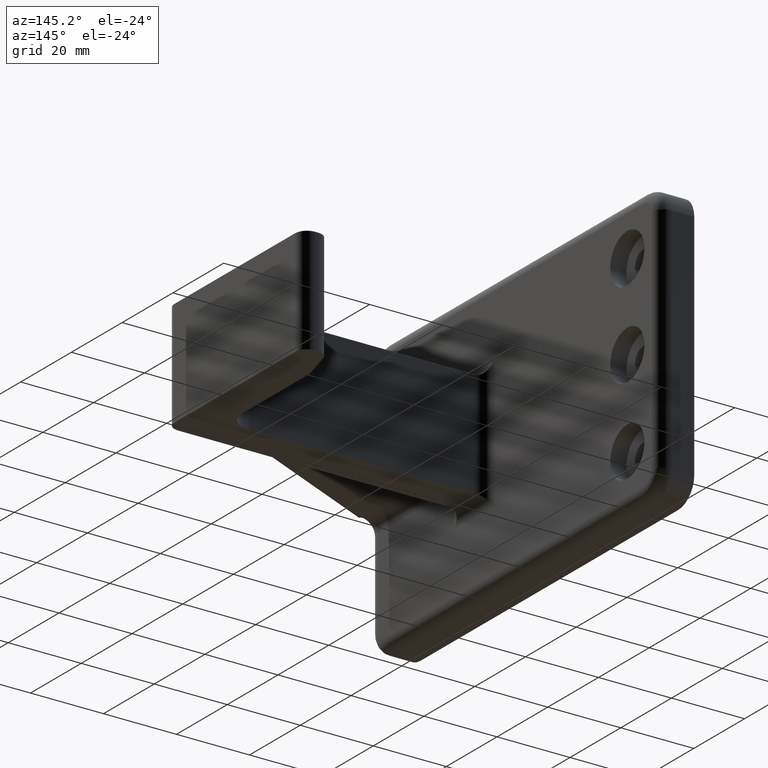
[diagram: clean part render]
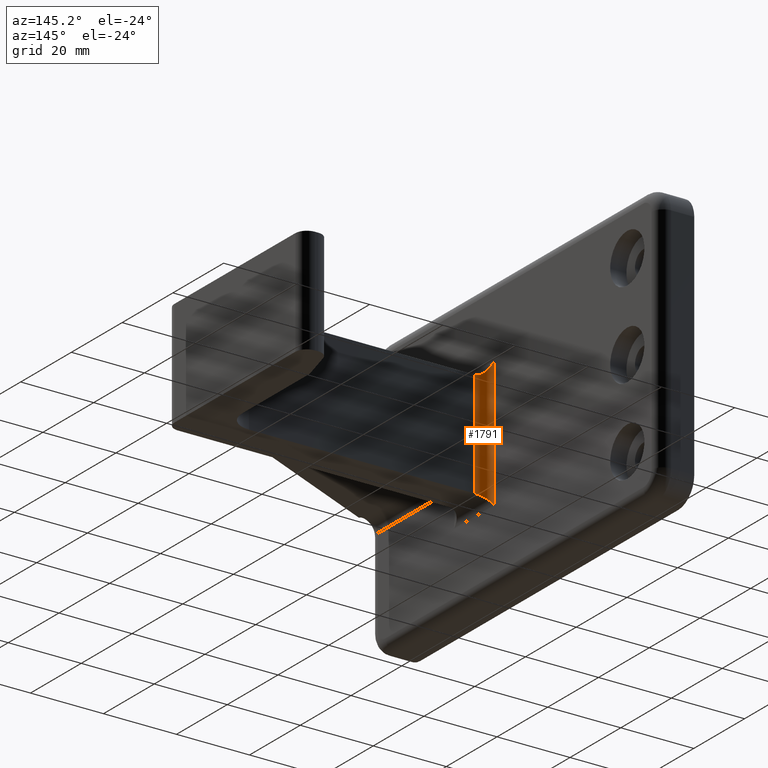
[diagram: same view with one face highlighted and labeled with its STEP entity id]
A machine part, auxiliary view. The second image highlights one B-rep face of the part: STEP entity #1791.
In plain terms, the highlighted cylindrical surface (edge-blend (fillet) strip) has radius 3.175 mm, axis along (0, 0, -1).
Its self-contained STEP definition (entity closure, byte-faithful):
#123 = VERTEX_POINT ( 'NONE', #334 ) ;
#142 = VERTEX_POINT ( 'NONE', #647 ) ;
#180 = VERTEX_POINT ( 'NONE', #300 ) ;
#183 = VERTEX_POINT ( 'NONE', #303 ) ;
#300 = CARTESIAN_POINT ( 'NONE',  ( 1.088993694186518600, 2.354496558212011900, -0.5749999999999999600 ) ) ;
#303 = CARTESIAN_POINT ( 'NONE',  ( 1.088993694186518600, 2.354496558212011900, 0.5749999999999999600 ) ) ;
#305 = CARTESIAN_POINT ( 'NONE',  ( 1.088993694186518600, 2.354496558212011900, -0.5749999999999999600 ) ) ;
#306 = CARTESIAN_POINT ( 'NONE',  ( 0.9639936941865184800, 2.479496558212011900, 0.6999999999999999600 ) ) ;
#307 = CARTESIAN_POINT ( 'NONE',  ( 1.015770389483155300, 2.354496558212012300, -0.5749999999999998400 ) ) ;
#308 = CARTESIAN_POINT ( 'NONE',  ( 0.9639936941865187000, 2.406273253508648800, -0.6267766952966367100 ) ) ;
#334 = CARTESIAN_POINT ( 'NONE',  ( 0.9639936941865184800, 2.479496558212011900, 0.6999999999999999600 ) ) ;
#497 = LINE ( 'NONE', #1099, #498 ) ;
#498 = VECTOR ( 'NONE', #1100, 39.37007874015748100 ) ;
#575 = EDGE_CURVE ( 'NONE', #180, #142, #1712, .T. ) ;
#576 = EDGE_CURVE ( 'NONE', #123, #183, #1713, .T. ) ;
#647 = CARTESIAN_POINT ( 'NONE',  ( 0.9639936941865184800, 2.479496558212011900, -0.6999999999999999600 ) ) ;
#656 = EDGE_CURVE ( 'NONE', #123, #142, #497, .T. ) ;
#760 = FACE_OUTER_BOUND ( 'NONE', #819, .T. ) ;
#770 = CYLINDRICAL_SURFACE ( 'NONE', #1855, 0.1250000000000000300 ) ;
#819 = EDGE_LOOP ( 'NONE', ( #1533, #1548, #1535, #1532 ) ) ;
#899 = CARTESIAN_POINT ( 'NONE',  ( 0.9639936941865184800, 2.479496558212011900, -0.6999999999999999600 ) ) ;
#901 = CARTESIAN_POINT ( 'NONE',  ( 0.9639936941865187000, 2.406273253508648800, 0.6267766952966368200 ) ) ;
#902 = CARTESIAN_POINT ( 'NONE',  ( 1.015770389483155600, 2.354496558212012300, 0.5749999999999999600 ) ) ;
#903 = CARTESIAN_POINT ( 'NONE',  ( 1.088993694186518600, 2.354496558212011900, 0.5749999999999999600 ) ) ;
#974 = CARTESIAN_POINT ( 'NONE',  ( 1.088993694186518600, 2.479496558212011900, -1.250000000000000000 ) ) ;
#976 = DIRECTION ( 'NONE',  ( -1.000000000000000000, 0.0000000000000000000, 0.0000000000000000000 ) ) ;
#977 = DIRECTION ( 'NONE',  ( 0.0000000000000000000, 0.0000000000000000000, -1.000000000000000000 ) ) ;
#1065 = CARTESIAN_POINT ( 'NONE',  ( 1.088993694186518600, 2.354496558212011900, 0.5749999999999999600 ) ) ;
#1066 = DIRECTION ( 'NONE',  ( -0.0000000000000000000, -0.0000000000000000000, 1.000000000000000000 ) ) ;
#1099 = CARTESIAN_POINT ( 'NONE',  ( 0.9639936941865184800, 2.479496558212011900, -1.250000000000000000 ) ) ;
#1100 = DIRECTION ( 'NONE',  ( 0.0000000000000000000, 0.0000000000000000000, -1.000000000000000000 ) ) ;
#1135 = EDGE_CURVE ( 'NONE', #180, #183, #1292, .T. ) ;
#1292 = LINE ( 'NONE', #1065, #1293 ) ;
#1293 = VECTOR ( 'NONE', #1066, 39.37007874015748100 ) ;
#1532 = ORIENTED_EDGE ( 'NONE', *, *, #575, .T. ) ;
#1533 = ORIENTED_EDGE ( 'NONE', *, *, #656, .F. ) ;
#1535 = ORIENTED_EDGE ( 'NONE', *, *, #1135, .F. ) ;
#1548 = ORIENTED_EDGE ( 'NONE', *, *, #576, .T. ) ;
#1712 =( BOUNDED_CURVE ( )  B_SPLINE_CURVE ( 3, ( #305, #307, #308, #899 ),
 .UNSPECIFIED., .F., .F. ) 
 B_SPLINE_CURVE_WITH_KNOTS ( ( 4, 4 ),
 ( 3.141592653589792700, 4.712388980384689700 ),
 .UNSPECIFIED. ) 
 CURVE ( )  GEOMETRIC_REPRESENTATION_ITEM ( )  RATIONAL_B_SPLINE_CURVE ( ( 1.000000000000000000, 0.8047378541243649400, 0.8047378541243649400, 1.000000000000000000 ) ) 
 REPRESENTATION_ITEM ( '' )  );
#1713 =( BOUNDED_CURVE ( )  B_SPLINE_CURVE ( 3, ( #306, #901, #902, #903 ),
 .UNSPECIFIED., .F., .F. ) 
 B_SPLINE_CURVE_WITH_KNOTS ( ( 4, 4 ),
 ( 4.712388980384689700, 6.283185307179586200 ),
 .UNSPECIFIED. ) 
 CURVE ( )  GEOMETRIC_REPRESENTATION_ITEM ( )  RATIONAL_B_SPLINE_CURVE ( ( 1.000000000000000000, 0.8047378541243649400, 0.8047378541243649400, 1.000000000000000000 ) ) 
 REPRESENTATION_ITEM ( '' )  );
#1791 = ADVANCED_FACE ( 'NONE', ( #760 ), #770, .F. ) ;
#1855 = AXIS2_PLACEMENT_3D ( 'NONE', #974, #977, #976 ) ;